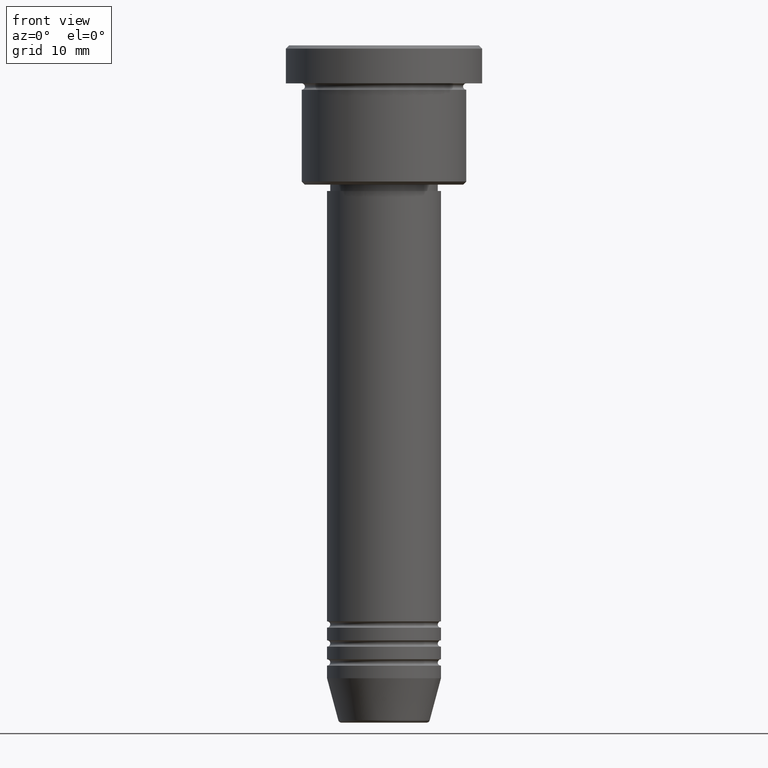
[diagram: clean part render]
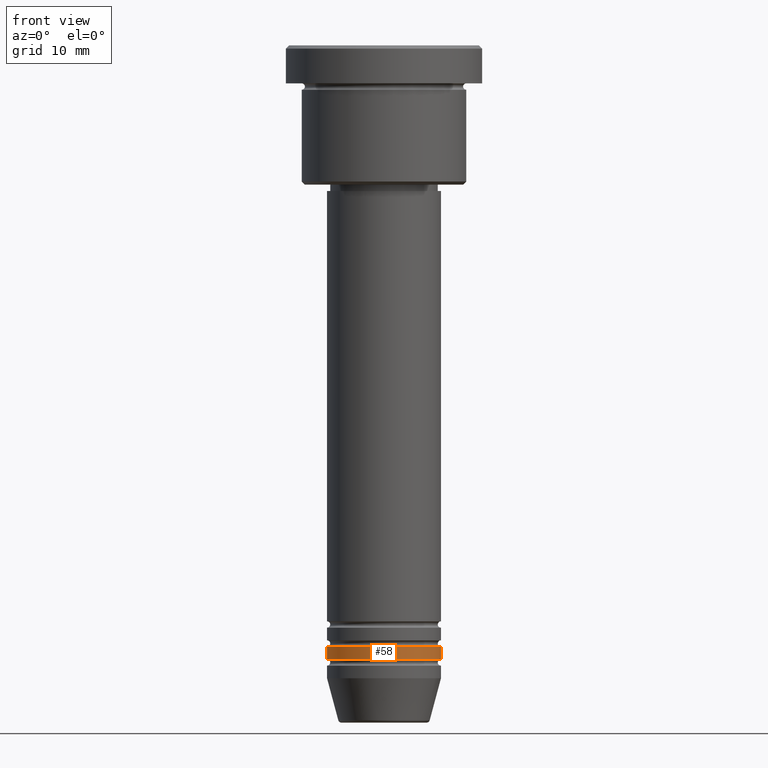
[diagram: same view with one face highlighted and labeled with its STEP entity id]
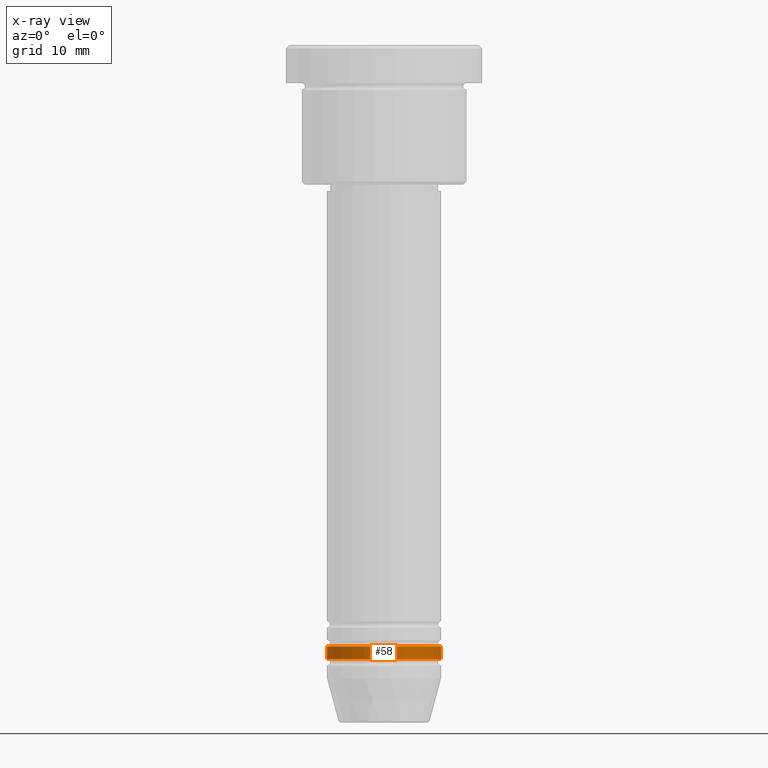
[diagram: x-ray of the same camera — body ghosted, the highlighted face saturated]
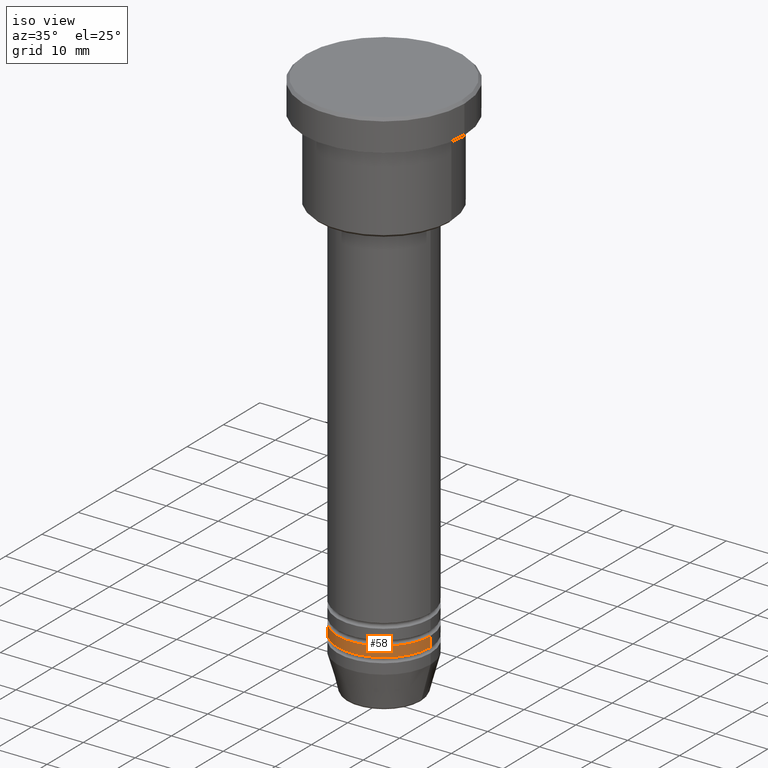
[diagram: same view with one face highlighted and labeled with its STEP entity id]
A machine part, front view. The second image highlights one B-rep face of the part: STEP entity #58.
The next image is the same camera in x-ray: the body ghosted, the highlighted face saturated — about 0% of this face is hidden behind the body in this view.
A second angle (iso view) of the same face is appended — the face is thin or edge-on in the first view.
In plain terms, the highlighted cylindrical surface (partial cylindrical patch) has radius 9 mm, axis along (-0, -0, 1).
Its self-contained STEP definition (entity closure, byte-faithful):
#16 = CARTESIAN_POINT ( 'NONE',  ( 0.000000000000000000, 0.000000000000000000, -94.99999999999998579 ) ) ;
#30 = VECTOR ( 'NONE', #243, 1000.000000000000000 ) ;
#58 = ADVANCED_FACE ( 'NONE', ( #119 ), #839, .T. ) ;
#62 = ORIENTED_EDGE ( 'NONE', *, *, #849, .F. ) ;
#68 = EDGE_CURVE ( 'NONE', #580, #1040, #208, .T. ) ;
#96 = CARTESIAN_POINT ( 'NONE',  ( -9.000000000000000000, 1.102182119232617714E-15, 0.000000000000000000 ) ) ;
#119 = FACE_OUTER_BOUND ( 'NONE', #925, .T. ) ;
#208 = CIRCLE ( 'NONE', #844, 9.000000000000000000 ) ;
#243 = DIRECTION ( 'NONE',  ( -0.000000000000000000, -0.000000000000000000, 1.000000000000000000 ) ) ;
#264 = ORIENTED_EDGE ( 'NONE', *, *, #768, .F. ) ;
#265 = EDGE_CURVE ( 'NONE', #1040, #997, #960, .T. ) ;
#266 = DIRECTION ( 'NONE',  ( 1.000000000000000000, 0.000000000000000000, 0.000000000000000000 ) ) ;
#313 = CARTESIAN_POINT ( 'NONE',  ( -9.000000000000000000, 1.102182119232617714E-15, -94.99999999999998579 ) ) ;
#317 = AXIS2_PLACEMENT_3D ( 'NONE', #16, #376, #266 ) ;
#330 = CARTESIAN_POINT ( 'NONE',  ( 9.000000000000000000, 0.000000000000000000, -96.99999999999997158 ) ) ;
#331 = DIRECTION ( 'NONE',  ( 1.000000000000000000, 0.000000000000000000, 0.000000000000000000 ) ) ;
#376 = DIRECTION ( 'NONE',  ( -0.000000000000000000, -0.000000000000000000, 1.000000000000000000 ) ) ;
#408 = DIRECTION ( 'NONE',  ( 1.000000000000000000, 0.000000000000000000, 0.000000000000000000 ) ) ;
#514 = CIRCLE ( 'NONE', #317, 9.000000000000000000 ) ;
#555 = VERTEX_POINT ( 'NONE', #313 ) ;
#564 = LINE ( 'NONE', #96, #923 ) ;
#580 = VERTEX_POINT ( 'NONE', #1073 ) ;
#584 = ORIENTED_EDGE ( 'NONE', *, *, #265, .T. ) ;
#591 = CARTESIAN_POINT ( 'NONE',  ( 0.000000000000000000, 0.000000000000000000, 0.000000000000000000 ) ) ;
#599 = AXIS2_PLACEMENT_3D ( 'NONE', #591, #950, #408 ) ;
#604 = CARTESIAN_POINT ( 'NONE',  ( 0.000000000000000000, 0.000000000000000000, -96.99999999999997158 ) ) ;
#768 = EDGE_CURVE ( 'NONE', #580, #555, #564, .T. ) ;
#818 = DIRECTION ( 'NONE',  ( -0.000000000000000000, -0.000000000000000000, 1.000000000000000000 ) ) ;
#839 = CYLINDRICAL_SURFACE ( 'NONE', #599, 9.000000000000000000 ) ;
#844 = AXIS2_PLACEMENT_3D ( 'NONE', #604, #1038, #331 ) ;
#849 = EDGE_CURVE ( 'NONE', #555, #997, #514, .T. ) ;
#853 = CARTESIAN_POINT ( 'NONE',  ( 9.000000000000000000, 0.000000000000000000, -94.99999999999998579 ) ) ;
#908 = ORIENTED_EDGE ( 'NONE', *, *, #68, .T. ) ;
#923 = VECTOR ( 'NONE', #818, 1000.000000000000000 ) ;
#925 = EDGE_LOOP ( 'NONE', ( #264, #908, #584, #62 ) ) ;
#950 = DIRECTION ( 'NONE',  ( -0.000000000000000000, -0.000000000000000000, 1.000000000000000000 ) ) ;
#960 = LINE ( 'NONE', #1056, #30 ) ;
#997 = VERTEX_POINT ( 'NONE', #853 ) ;
#1038 = DIRECTION ( 'NONE',  ( -0.000000000000000000, -0.000000000000000000, 1.000000000000000000 ) ) ;
#1040 = VERTEX_POINT ( 'NONE', #330 ) ;
#1056 = CARTESIAN_POINT ( 'NONE',  ( 9.000000000000000000, 0.000000000000000000, 0.000000000000000000 ) ) ;
#1073 = CARTESIAN_POINT ( 'NONE',  ( -9.000000000000000000, 1.102182119232617714E-15, -96.99999999999997158 ) ) ;